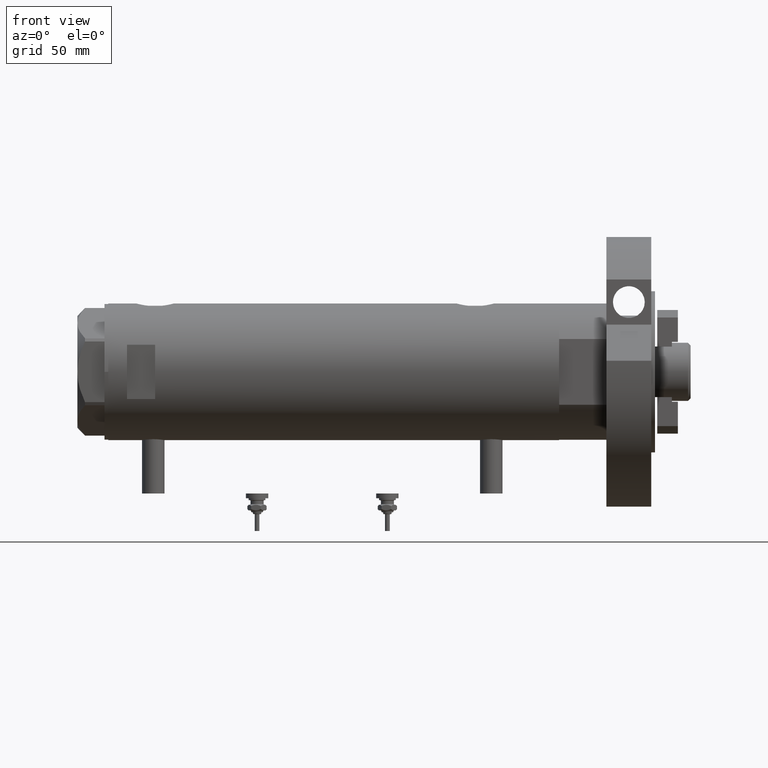
[diagram: clean part render]
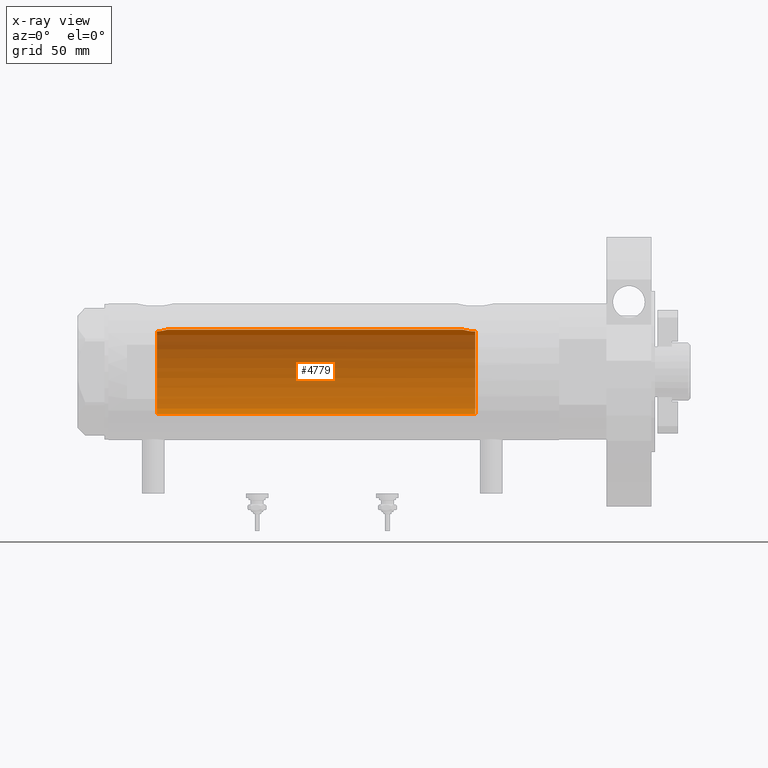
[diagram: x-ray — body ghosted, one internal face saturated and labeled with its STEP entity id]
A machine part, front view, then the same camera in x-ray: the body is ghosted and one INTERNAL B-rep face — a face not visible from any outside direction — is saturated and labeled: STEP entity #4779.
In plain terms, the highlighted cylindrical surface (partial cylindrical patch) has radius 22.5 mm, axis along (1, 0, -0).
Its self-contained STEP definition (entity closure, byte-faithful):
#248 = LINE ( 'NONE', #4285, #8281 ) ;
#318 = CARTESIAN_POINT ( 'NONE',  ( -22.50000000000000355, 0.000000000000000000, 120.4000000000000057 ) ) ;
#456 = EDGE_CURVE ( 'NONE', #6027, #7839, #7921, .T. ) ;
#540 = DIRECTION ( 'NONE',  ( -0.000000000000000000, -0.000000000000000000, -1.000000000000000000 ) ) ;
#630 = CARTESIAN_POINT ( 'NONE',  ( 21.88602906110443058, 5.222191658358653399, -71.59110908501990878 ) ) ;
#790 = CARTESIAN_POINT ( 'NONE',  ( 22.45973433770731376, 1.359115216171842722, 88.95894713662340791 ) ) ;
#825 = CARTESIAN_POINT ( 'NONE',  ( 21.65875036540690601, 6.096384986856001831, 92.89350157007415021 ) ) ;
#912 = CARTESIAN_POINT ( 'NONE',  ( 21.85514244747244561, 5.349553529053608258, -71.76278474480278646 ) ) ;
#968 = CARTESIAN_POINT ( 'NONE',  ( 0.000000000000000000, 0.000000000000000000, 120.4000000000000057 ) ) ;
#1251 = CARTESIAN_POINT ( 'NONE',  ( 22.07793805162484091, 4.348669293362737776, -70.64321183416399208 ) ) ;
#1422 = CARTESIAN_POINT ( 'NONE',  ( 22.50000000000000711, 0.4308769323960456310, -69.02000000000001023 ) ) ;
#1554 = CARTESIAN_POINT ( 'NONE',  ( 0.000000000000000000, 0.000000000000000000, 94.40000000000000568 ) ) ;
#1686 = EDGE_CURVE ( 'NONE', #6209, #3180, #4486, .T. ) ;
#1842 = CARTESIAN_POINT ( 'NONE',  ( 22.50000000000000355, 0.000000000000000000, 88.82000000000000739 ) ) ;
#1863 = CARTESIAN_POINT ( 'NONE',  ( -22.50000000000000355, 0.000000000000000000, 94.40000000000000568 ) ) ;
#1880 = CARTESIAN_POINT ( 'NONE',  ( 22.25860915731085043, 3.306748059303226128, -69.89512753277104196 ) ) ;
#1881 = CARTESIAN_POINT ( 'NONE',  ( 22.30007684883240060, 3.011608117356129988, 89.53690468166831806 ) ) ;
#2062 = VERTEX_POINT ( 'NONE', #3229 ) ;
#2099 = CARTESIAN_POINT ( 'NONE',  ( 21.51969523957628283, 6.569111213712935715, -75.16380209493694053 ) ) ;
#2133 = CARTESIAN_POINT ( 'NONE',  ( 22.34487948028763427, 2.662928462767977233, 89.37031008565887191 ) ) ;
#2142 = CARTESIAN_POINT ( 'NONE',  ( 21.58039466125149630, 6.367443256290039599, -73.88625661091904817 ) ) ;
#2241 = CARTESIAN_POINT ( 'NONE',  ( 0.000000000000000000, 0.000000000000000000, -75.59999999999999432 ) ) ;
#2481 = CARTESIAN_POINT ( 'NONE',  ( 21.85834467356398747, 5.340944334976046370, 91.53736885285054825 ) ) ;
#2577 = ORIENTED_EDGE ( 'NONE', *, *, #2934, .T. ) ;
#2604 = ORIENTED_EDGE ( 'NONE', *, *, #456, .F. ) ;
#2680 = CARTESIAN_POINT ( 'NONE',  ( 21.70300828301578733, 5.938634204148080187, 92.54008341356920653 ) ) ;
#2794 = FACE_OUTER_BOUND ( 'NONE', #7952, .T. ) ;
#2797 = DIRECTION ( 'NONE',  ( -1.000000000000000000, 0.000000000000000000, 0.000000000000000000 ) ) ;
#2798 = AXIS2_PLACEMENT_3D ( 'NONE', #2241, #7291, #2797 ) ;
#2815 = CARTESIAN_POINT ( 'NONE',  ( 21.61738790272777777, 6.242481197317903074, -73.47475324290418541 ) ) ;
#2865 = ORIENTED_EDGE ( 'NONE', *, *, #5762, .T. ) ;
#2914 = ORIENTED_EDGE ( 'NONE', *, *, #1686, .T. ) ;
#2934 = EDGE_CURVE ( 'NONE', #3180, #2062, #7214, .T. ) ;
#3180 = VERTEX_POINT ( 'NONE', #1863 ) ;
#3229 = CARTESIAN_POINT ( 'NONE',  ( -22.50000000000000355, 0.000000000000000000, -75.59999999999999432 ) ) ;
#3333 = CARTESIAN_POINT ( 'NONE',  ( 22.50000000000000355, 8.058593785575293352E-16, -69.01999999999999602 ) ) ;
#3369 = CARTESIAN_POINT ( 'NONE',  ( 22.43846943857365517, 1.717024460055897039, -69.23305400432137446 ) ) ;
#3388 = CYLINDRICAL_SURFACE ( 'NONE', #4927, 22.50000000000000355 ) ;
#3400 = CARTESIAN_POINT ( 'NONE',  ( 22.44738562510071489, 1.549445000368397940, 89.00203276325541424 ) ) ;
#3449 = CARTESIAN_POINT ( 'NONE',  ( 21.51635656889893156, 6.580000000000001847, -75.38312317022888465 ) ) ;
#3467 = DIRECTION ( 'NONE',  ( -0.000000000000000000, -0.000000000000000000, -1.000000000000000000 ) ) ;
#3827 = CARTESIAN_POINT ( 'NONE',  ( 21.98170506496023791, 4.804030677015548534, -71.09847163284564431 ) ) ;
#3915 = EDGE_CURVE ( 'NONE', #5207, #6027, #248, .T. ) ;
#3998 = CARTESIAN_POINT ( 'NONE',  ( 22.48752745446833146, 0.8626660575027231825, -69.06226479722903377 ) ) ;
#4126 = DIRECTION ( 'NONE',  ( 1.000000000000000000, 0.000000000000000000, 0.000000000000000000 ) ) ;
#4285 = CARTESIAN_POINT ( 'NONE',  ( 22.50000000000000355, 2.755455298081545172E-15, 120.4000000000000057 ) ) ;
#4462 = CARTESIAN_POINT ( 'NONE',  ( 22.14109776314136724, 4.018961829707384581, -70.37237162697964266 ) ) ;
#4466 = CARTESIAN_POINT ( 'NONE',  ( 21.53958216864942088, 6.503568251352485952, 94.40000000000000568 ) ) ;
#4486 = CIRCLE ( 'NONE', #6627, 22.50000000000000355 ) ;
#4620 = CARTESIAN_POINT ( 'NONE',  ( 21.53958216864942088, 6.503568251352485952, 94.40000000000000568 ) ) ;
#4662 = CARTESIAN_POINT ( 'NONE',  ( 21.97198143592079234, 4.852313884858193482, 90.93898489903314442 ) ) ;
#4716 = CARTESIAN_POINT ( 'NONE',  ( 21.51635656889892800, 6.580000000000002736, -75.59999999999999432 ) ) ;
#4779 = ADVANCED_FACE ( 'NONE', ( #2794 ), #3388, .F. ) ;
#4791 = CARTESIAN_POINT ( 'NONE',  ( 21.71097692913351906, 5.908765693315412904, -72.67224774632268236 ) ) ;
#4925 = CARTESIAN_POINT ( 'NONE',  ( 22.50000000000000355, 0.000000000000000000, 88.82000000000000739 ) ) ;
#4927 = AXIS2_PLACEMENT_3D ( 'NONE', #968, #3467, #5363 ) ;
#5049 = CARTESIAN_POINT ( 'NONE',  ( 21.55996057785741371, 6.435875139617808216, 94.01641692772588499 ) ) ;
#5091 = CARTESIAN_POINT ( 'NONE',  ( 22.31307373663816662, 2.921646833104070140, -69.68858613169777527 ) ) ;
#5092 = CARTESIAN_POINT ( 'NONE',  ( 21.58771824211647683, 6.342145538420568052, 93.63591924784435605 ) ) ;
#5207 = VERTEX_POINT ( 'NONE', #4925 ) ;
#5253 = CARTESIAN_POINT ( 'NONE',  ( 22.14421896774458531, 3.996618394220595061, 90.15850411031067324 ) ) ;
#5343 = EDGE_CURVE ( 'NONE', #6209, #5207, #6750, .T. ) ;
#5363 = DIRECTION ( 'NONE',  ( -1.000000000000000000, 0.000000000000000000, 0.000000000000000000 ) ) ;
#5381 = CARTESIAN_POINT ( 'NONE',  ( 21.53277870401796434, 6.526097350343576409, -74.73193080670431243 ) ) ;
#5429 = CARTESIAN_POINT ( 'NONE',  ( 21.51635656889892800, 6.580000000000002736, -75.59999999999999432 ) ) ;
#5681 = CARTESIAN_POINT ( 'NONE',  ( 21.60406082673097572, 6.286405977953737789, 93.44666670735806235 ) ) ;
#5737 = ORIENTED_EDGE ( 'NONE', *, *, #3915, .F. ) ;
#5745 = CIRCLE ( 'NONE', #2798, 22.50000000000000355 ) ;
#5762 = EDGE_CURVE ( 'NONE', #2062, #7839, #5745, .T. ) ;
#5766 = CARTESIAN_POINT ( 'NONE',  ( 22.20005338163446496, 3.677069589895778812, 89.92964083487821370 ) ) ;
#5960 = CARTESIAN_POINT ( 'NONE',  ( 22.41810768969941847, 1.927264596308561284, 89.10552498238021712 ) ) ;
#6009 = CARTESIAN_POINT ( 'NONE',  ( 21.76592257976932743, 5.705656113855375189, -72.29484284637811697 ) ) ;
#6027 = VERTEX_POINT ( 'NONE', #3333 ) ;
#6055 = CARTESIAN_POINT ( 'NONE',  ( 21.54248662244913604, 6.494090541481658541, -74.51861175082140676 ) ) ;
#6209 = VERTEX_POINT ( 'NONE', #4466 ) ;
#6360 = CARTESIAN_POINT ( 'NONE',  ( 21.54850992350584704, 6.473999851071387646, 94.20769989068857342 ) ) ;
#6400 = CARTESIAN_POINT ( 'NONE',  ( 21.94924653817634663, 4.949760619110004534, -71.25922104935665402 ) ) ;
#6627 = AXIS2_PLACEMENT_3D ( 'NONE', #1554, #8030, #4126 ) ;
#6746 = DIRECTION ( 'NONE',  ( -0.000000000000000000, -0.000000000000000000, -1.000000000000000000 ) ) ;
#6750 = B_SPLINE_CURVE_WITH_KNOTS ( 'NONE', 3,
 ( #4620, #6360, #5049, #5092, #5681, #825, #2680, #7605, #2481, #4662, #6974, #5253, #5766, #1881, #2133, #7812, #5960, #3400, #790, #8247, #7012, #1842 ),
 .UNSPECIFIED., .F., .F.,
 ( 4, 2, 2, 2, 2, 2, 2, 2, 2, 2, 4 ),
 ( 0.03202894702871425525, 0.03261250414633488220, 0.03319606126395550916, 0.03436317549919672837, 0.03553028973443794758, 0.03669740396967915985, 0.03786451820492037906, 0.03903163244016159827, 0.03961518955778220441, 0.04019874667540280361, 0.04136586091064399506 ),
 .UNSPECIFIED. ) ;
#6974 = CARTESIAN_POINT ( 'NONE',  ( 22.03020271031500599, 4.583618747547674843, 90.66326305060307789 ) ) ;
#7012 = CARTESIAN_POINT ( 'NONE',  ( 22.50000000000000000, 0.3947970979781452727, 88.81999999999999318 ) ) ;
#7164 = ORIENTED_EDGE ( 'NONE', *, *, #5343, .F. ) ;
#7186 = CARTESIAN_POINT ( 'NONE',  ( 22.50000000000000355, 8.058593785575293352E-16, -69.01999999999999602 ) ) ;
#7214 = LINE ( 'NONE', #318, #7721 ) ;
#7291 = DIRECTION ( 'NONE',  ( 0.000000000000000000, 0.000000000000000000, -1.000000000000000000 ) ) ;
#7605 = CARTESIAN_POINT ( 'NONE',  ( 21.80257506594836414, 5.561983929949493088, 91.86293428743495326 ) ) ;
#7647 = CARTESIAN_POINT ( 'NONE',  ( 22.40265168709897026, 2.128491761919766301, -69.35897789146818582 ) ) ;
#7721 = VECTOR ( 'NONE', #6746, 1000.000000000000000 ) ;
#7812 = CARTESIAN_POINT ( 'NONE',  ( 22.40112435233284671, 2.115025885874704414, 89.16613662186026090 ) ) ;
#7839 = VERTEX_POINT ( 'NONE', #5429 ) ;
#7921 = B_SPLINE_CURVE_WITH_KNOTS ( 'NONE', 3,
 ( #7186, #1422, #3998, #3369, #7647, #5091, #1880, #4462, #1251, #3827, #6400, #630, #912, #6009, #4791, #2815, #2142, #6055, #5381, #2099, #3449, #4716 ),
 .UNSPECIFIED., .F., .F.,
 ( 4, 2, 2, 2, 2, 2, 2, 2, 2, 2, 4 ),
 ( 0.02068572879290662969, 0.02197833177876011915, 0.02327093476461360860, 0.02456353775046710153, 0.02585614073632059098, 0.02650244222924735132, 0.02714874372217410819, 0.02844134670802762888, 0.02973394969388114956, 0.03038025118680791337, 0.03102655267973467371 ),
 .UNSPECIFIED. ) ;
#7952 = EDGE_LOOP ( 'NONE', ( #5737, #7164, #2914, #2577, #2865, #2604 ) ) ;
#8030 = DIRECTION ( 'NONE',  ( 0.000000000000000000, 0.000000000000000000, 1.000000000000000000 ) ) ;
#8247 = CARTESIAN_POINT ( 'NONE',  ( 22.48961798642638144, 0.7839168256130889523, 88.85525408827135152 ) ) ;
#8281 = VECTOR ( 'NONE', #540, 1000.000000000000000 ) ;